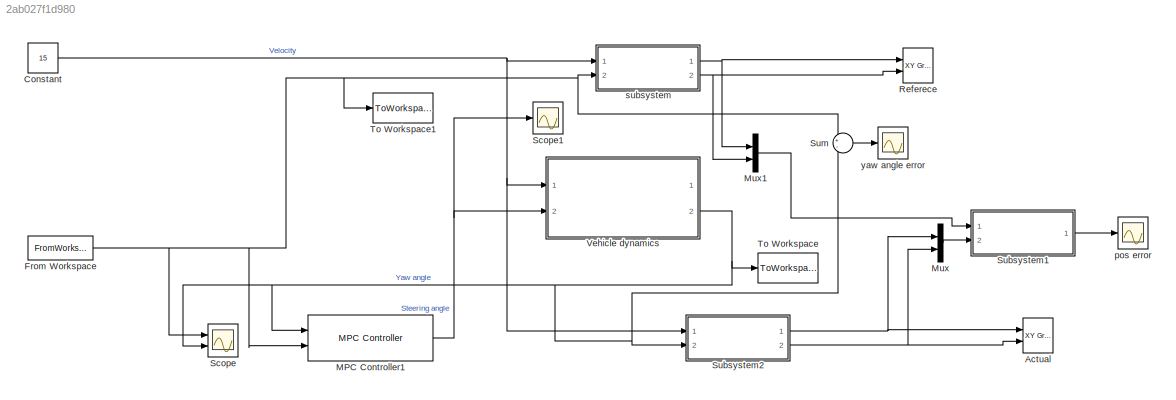
MODEL slx_2ab027f1d980
KIND model
CONFIG AbsTol = auto
CONFIG EnableMultiTasking = off
CONFIG FixedStep = 0.1
CONFIG MaxStep = auto
CONFIG MinStep = auto
CONFIG RelTol = 1e-3
CONFIG SampleTimeConstraint = Unconstrained
CONFIG Solver = FixedStepAuto
CONFIG SolverName = FixedStepAuto
CONFIG StartTime = 0.0
CONFIG StopTime = 7.6
BLOCK [Reference] Actual  REF=simulink/Sinks/XY Graph
  Ports = [2]
  SourceBlock = simulink/Sinks/XY Graph
  SourceProductBaseCode = SL
  SourceProductName = Simulink
  SourceType = XY scope.
BLOCK [Constant] Constant
  Value = 15
BLOCK [FromWorkspace] From Workspace
  SampleTime = 0
  VariableName = refYaw
  ZeroCross = on
BLOCK [Reference] MPC Controller1  REF=mpclib/MPC Controller  (lib defined in mdl_ae329e0e0455)
  Ports = [2, 1]
  SCDEnableBlockLinearizationSpecification = on
  SourceBlock = mpclib/MPC Controller
  SourceProductBaseCode = MP
  SourceProductName = Model Predictive Control Toolbox
  SourceType = MPC
BLOCK [Mux] Mux
  DisplayOption = bar
  Inputs = 2
  Ports = [2, 1]
BLOCK [Mux] Mux1
  DisplayOption = bar
  Inputs = 2
  Ports = [2, 1]
BLOCK [Reference] Referece  REF=simulink/Sinks/XY Graph
  Ports = [2]
  SourceBlock = simulink/Sinks/XY Graph
  SourceProductBaseCode = SL
  SourceProductName = Simulink
  SourceType = XY scope.
BLOCK [Scope] Scope
  Floating = off
  NumInputPorts = 2
  Ports = [2]
  ScopeSpecificationString = Simulink.scopes.TimeScopeBlockCfg('CurrentConfiguration', extmgr.ConfigurationSet(extmgr.Configuration('Core','General UI',true),extmgr.Configuration('Core','Source UI',true),extmgr.Configuration('Sources','WiredSimulink',true),extmgr.Configuration('Visuals','Time Domain',true,'SerializedDisplays',{struct('MinYLimReal','-3.26629','MaxYLimReal','3.71739','YLabelReal','','MinYLimMag','0.00000','MaxY...<+1400ch>
BLOCK [Scope] Scope1
  Floating = off
  NumInputPorts = 1
  Ports = [1]
  ScopeSpecificationString = Simulink.scopes.TimeScopeBlockCfg('CurrentConfiguration', extmgr.ConfigurationSet(extmgr.Configuration('Core','General UI',true),extmgr.Configuration('Core','Source UI',true),extmgr.Configuration('Sources','WiredSimulink',true,'DataLoggingVariableName','ScopeData1'),extmgr.Configuration('Visuals','Time Domain',true,'SerializedDisplays',{struct('MinYLimReal','-1.39951','MaxYLimReal','1.44789','YLab...<+1373ch>
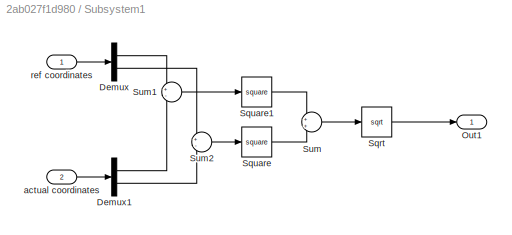
BLOCK [SubSystem] Subsystem1
  Ports = [2, 1]
  RequestExecContextInheritance = off
BLOCK [Demux] Subsystem1/Demux
  DisplayOption = bar
  Outputs = 2
  Ports = [1, 2]
BLOCK [Demux] Subsystem1/Demux1
  DisplayOption = bar
  Outputs = 2
  Ports = [1, 2]
BLOCK [Outport] Subsystem1/Out1
  IconDisplay = Port number
BLOCK [Sqrt] Subsystem1/Sqrt
BLOCK [Math] Subsystem1/Square
  Operator = square
  Ports = [1, 1]
BLOCK [Math] Subsystem1/Square1
  Operator = square
  Ports = [1, 1]
BLOCK [Sum] Subsystem1/Sum
  IconShape = round
  InputSameDT = off
  OutDataTypeStr = Inherit: Inherit via internal rule
  Ports = [2, 1]
  SaturateOnIntegerOverflow = off
BLOCK [Sum] Subsystem1/Sum1
  IconShape = round
  InputSameDT = off
  Inputs = +-
  OutDataTypeStr = Inherit: Inherit via internal rule
  Ports = [2, 1]
  SaturateOnIntegerOverflow = off
BLOCK [Sum] Subsystem1/Sum2
  IconShape = round
  InputSameDT = off
  Inputs = +-
  OutDataTypeStr = Inherit: Inherit via internal rule
  Ports = [2, 1]
  SaturateOnIntegerOverflow = off
BLOCK [Inport] Subsystem1/actual coordinates
  IconDisplay = Port number
  Port = 2
BLOCK [Inport] Subsystem1/ref coordinates
  IconDisplay = Port number
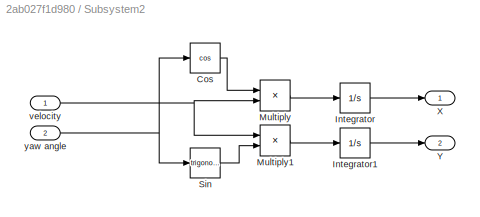
BLOCK [SubSystem] Subsystem2
  Ports = [2, 2]
  RequestExecContextInheritance = off
BLOCK [Trigonometry] Subsystem2/Cos
  Operator = cos
  Ports = [1, 1]
BLOCK [Integrator] Subsystem2/Integrator
  Ports = [1, 1]
BLOCK [Integrator] Subsystem2/Integrator1
  Ports = [1, 1]
BLOCK [Product] Subsystem2/Multiply
  InputSameDT = off
  OutDataTypeStr = Inherit: Inherit via internal rule
  Ports = [2, 1]
  RndMeth = Floor
  SaturateOnIntegerOverflow = off
BLOCK [Product] Subsystem2/Multiply1
  InputSameDT = off
  OutDataTypeStr = Inherit: Inherit via internal rule
  Ports = [2, 1]
  RndMeth = Floor
  SaturateOnIntegerOverflow = off
BLOCK [Trigonometry] Subsystem2/Sin
  Ports = [1, 1]
BLOCK [Outport] Subsystem2/X
  IconDisplay = Port number
BLOCK [Outport] Subsystem2/Y
  IconDisplay = Port number
  Port = 2
BLOCK [Inport] Subsystem2/velocity
  IconDisplay = Port number
BLOCK [Inport] Subsystem2/yaw angle
  IconDisplay = Port number
  Port = 2
BLOCK [Sum] Sum
  IconShape = round
  InputSameDT = off
  Inputs = +-
  OutDataTypeStr = Inherit: Inherit via internal rule
  Ports = [2, 1]
  SaturateOnIntegerOverflow = off
BLOCK [ToWorkspace] To Workspace
  FixptAsFi = on
  MaxDataPoints = inf
  Ports = [1]
  SampleTime = -1
  Save2DSignal = 3-D array (concatenate along third dimension)
  SaveFormat = Timeseries
  VariableName = actyaw
BLOCK [ToWorkspace] To Workspace1
  FixptAsFi = on
  MaxDataPoints = inf
  Ports = [1]
  SampleTime = -1
  Save2DSignal = 3-D array (concatenate along third dimension)
  SaveFormat = Timeseries
  VariableName = refyaw
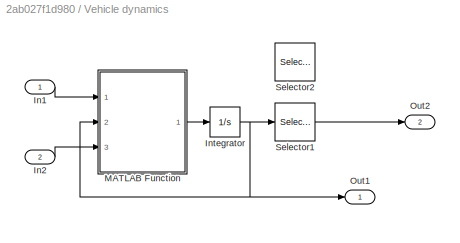
BLOCK [SubSystem] Vehicle dynamics
  Ports = [2, 2]
  RequestExecContextInheritance = off
BLOCK [Inport] Vehicle dynamics/In1
  IconDisplay = Port number
BLOCK [Inport] Vehicle dynamics/In2
  IconDisplay = Port number
  Port = 2
BLOCK [Integrator] Vehicle dynamics/Integrator
  Ports = [1, 1]
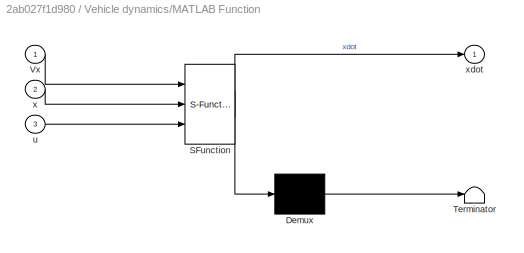
BLOCK [SubSystem] Vehicle dynamics/MATLAB Function
  ErrorFcn = Stateflow.Translate.translate
  PermitHierarchicalResolution = ExplicitOnly
  Ports = [3, 1]
  RequestExecContextInheritance = off
  SFBlockType = MATLAB Function
  TreatAsAtomicUnit = on
BLOCK [Demux] Vehicle dynamics/MATLAB Function/ Demux 
  Outputs = 1
  Ports = [1, 1]
BLOCK [S-Function] Vehicle dynamics/MATLAB Function/ SFunction 
  EnableBusSupport = on
  FunctionName = sf_sfun
  PortCounts = [3 2]
  Ports = [3, 2]
  SFcnIsStateOwnerBlock = off
  SFunctionDeploymentMode = off
  Tag = Stateflow S-Function racecarMPCsim 1
BLOCK [Terminator] Vehicle dynamics/MATLAB Function/ Terminator 
BLOCK [Inport] Vehicle dynamics/MATLAB Function/Vx
  IconDisplay = Port number
BLOCK [Inport] Vehicle dynamics/MATLAB Function/u
  IconDisplay = Port number
  Port = 3
BLOCK [Inport] Vehicle dynamics/MATLAB Function/x
  IconDisplay = Port number
  Port = 2
BLOCK [Outport] Vehicle dynamics/MATLAB Function/xdot
  IconDisplay = Port number
BLOCK [Outport] Vehicle dynamics/Out1
  IconDisplay = Port number
BLOCK [Outport] Vehicle dynamics/Out2
  IconDisplay = Port number
  Port = 2
BLOCK [Selector] Vehicle dynamics/Selector1
  IndexOptions = Index vector (dialog)
  Indices = 3
  InputPortWidth = 4
  OutputSizes = 1
  Ports = [1, 1]
BLOCK [Selector] Vehicle dynamics/Selector2
  IndexOptions = Index vector (dialog)
  Indices = 3
  InputPortWidth = 4
  OutputSizes = 1
  Ports = [1, 1]
BLOCK [Scope] pos error
  Floating = off
  NumInputPorts = 1
  Ports = [1]
  ScopeSpecificationString = Simulink.scopes.TimeScopeBlockCfg('CurrentConfiguration', extmgr.ConfigurationSet(extmgr.Configuration('Core','General UI',true),extmgr.Configuration('Core','Source UI',true),extmgr.Configuration('Sources','WiredSimulink',true,'DataLoggingVariableName','ScopeData3'),extmgr.Configuration('Visuals','Time Domain',true,'SerializedDisplays',{struct('MinYLimReal','-0.62901','MaxYLimReal','5.66112','YLab...<+1395ch>
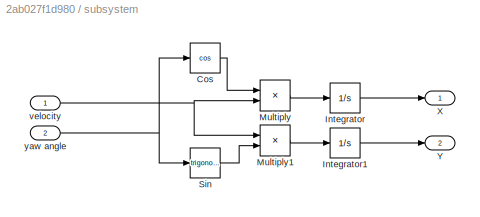
BLOCK [SubSystem] subsystem 
  Ports = [2, 2]
  RequestExecContextInheritance = off
BLOCK [Trigonometry] subsystem /Cos
  Operator = cos
  Ports = [1, 1]
BLOCK [Integrator] subsystem /Integrator
  Ports = [1, 1]
BLOCK [Integrator] subsystem /Integrator1
  Ports = [1, 1]
BLOCK [Product] subsystem /Multiply
  InputSameDT = off
  OutDataTypeStr = Inherit: Inherit via internal rule
  Ports = [2, 1]
  RndMeth = Floor
  SaturateOnIntegerOverflow = off
BLOCK [Product] subsystem /Multiply1
  InputSameDT = off
  OutDataTypeStr = Inherit: Inherit via internal rule
  Ports = [2, 1]
  RndMeth = Floor
  SaturateOnIntegerOverflow = off
BLOCK [Trigonometry] subsystem /Sin
  Ports = [1, 1]
BLOCK [Outport] subsystem /X
  IconDisplay = Port number
BLOCK [Outport] subsystem /Y
  IconDisplay = Port number
  Port = 2
BLOCK [Inport] subsystem /velocity
  IconDisplay = Port number
BLOCK [Inport] subsystem /yaw angle
  IconDisplay = Port number
  Port = 2
BLOCK [Scope] yaw angle error
  Floating = off
  NumInputPorts = 1
  Ports = [1]
  ScopeSpecificationString = Simulink.scopes.TimeScopeBlockCfg('CurrentConfiguration', extmgr.ConfigurationSet(extmgr.Configuration('Core','General UI',true),extmgr.Configuration('Core','Source UI',true),extmgr.Configuration('Sources','WiredSimulink',true,'DataLoggingVariableName','ScopeData2'),extmgr.Configuration('Visuals','Time Domain',true,'SerializedDisplays',{struct('MinYLimReal','-2.92299','MaxYLimReal','0.63539','YLab...<+1415ch>
NET Constant:1 -> Subsystem2:1, Vehicle dynamics:1, subsystem :1
NET From Workspace:1 -> MPC Controller1:2, Scope:1, Sum:1, To Workspace1:1, subsystem :2
NET MPC Controller1:1 -> Scope1:1, Vehicle dynamics:2
LINE Mux1:1 -> Subsystem1:1
LINE Mux:1 -> Subsystem1:2
LINE Subsystem1/Demux1:1 -> Subsystem1/Sum1:2
LINE Subsystem1/Demux1:2 -> Subsystem1/Sum2:2
LINE Subsystem1/Demux:1 -> Subsystem1/Sum1:1
LINE Subsystem1/Demux:2 -> Subsystem1/Sum2:1
LINE Subsystem1/Sqrt:1 -> Subsystem1/Out1:1
LINE Subsystem1/Square1:1 -> Subsystem1/Sum:1
LINE Subsystem1/Square:1 -> Subsystem1/Sum:2
LINE Subsystem1/Sum1:1 -> Subsystem1/Square1:1
LINE Subsystem1/Sum2:1 -> Subsystem1/Square:1
LINE Subsystem1/Sum:1 -> Subsystem1/Sqrt:1
LINE Subsystem1/actual coordinates:1 -> Subsystem1/Demux1:1
LINE Subsystem1/ref coordinates:1 -> Subsystem1/Demux:1
LINE Subsystem1:1 -> pos error:1
LINE Subsystem2/Cos:1 -> Subsystem2/Multiply:1
LINE Subsystem2/Integrator1:1 -> Subsystem2/Y:1
LINE Subsystem2/Integrator:1 -> Subsystem2/X:1
LINE Subsystem2/Multiply1:1 -> Subsystem2/Integrator1:1
LINE Subsystem2/Multiply:1 -> Subsystem2/Integrator:1
LINE Subsystem2/Sin:1 -> Subsystem2/Multiply1:2
NET Subsystem2/velocity:1 -> Subsystem2/Multiply1:1, Subsystem2/Multiply:2
NET Subsystem2/yaw angle:1 -> Subsystem2/Cos:1, Subsystem2/Sin:1
NET Subsystem2:1 -> Actual:1, Mux:1
NET Subsystem2:2 -> Actual:2, Mux:2
LINE Sum:1 -> yaw angle error:1
LINE Vehicle dynamics/In1:1 -> Vehicle dynamics/MATLAB Function:1
LINE Vehicle dynamics/In2:1 -> Vehicle dynamics/MATLAB Function:3
NET Vehicle dynamics/Integrator:1 -> Vehicle dynamics/MATLAB Function:2, Vehicle dynamics/Out1:1, Vehicle dynamics/Selector1:1
LINE Vehicle dynamics/MATLAB Function:1 -> Vehicle dynamics/Integrator:1
LINE Vehicle dynamics/Selector1:1 -> Vehicle dynamics/Out2:1
NET Vehicle dynamics:2 -> MPC Controller1:1, Scope:2, Subsystem2:2, Sum:2, To Workspace:1
LINE subsystem /Cos:1 -> subsystem /Multiply:1
LINE subsystem /Integrator1:1 -> subsystem /Y:1
LINE subsystem /Integrator:1 -> subsystem /X:1
LINE subsystem /Multiply1:1 -> subsystem /Integrator1:1
LINE subsystem /Multiply:1 -> subsystem /Integrator:1
LINE subsystem /Sin:1 -> subsystem /Multiply1:2
NET subsystem /velocity:1 -> subsystem /Multiply1:1, subsystem /Multiply:2
NET subsystem /yaw angle:1 -> subsystem /Cos:1, subsystem /Sin:1
NET subsystem :1 -> Mux1:1, Referece:1
NET subsystem :2 -> Mux1:2, Referece:2
note: NET lines group one-source signal fan-out (src -> all destinations, sorted); 1:1 wires keep LINE
CHART Vehicle dynamics/MATLAB Function states=1 transitions=1
  STATE_LABEL 'eML_blk_kernel()'
  STATE_LABEL 'SCRIPT:\nfunction xdot = fcn(Vx,x,u)\n\n% Model parameters\n% m = 293;\n% lw = 1.4;\n% Ltotal = 2.3;\n% Iz = m*(lw^2 + Ltotal^2)/12;\n% lf = 0.85;\n% lr = 0.75;\n% Cf = 12000;\n% Cr = 20000;\n\nm = 1575;\nIz = 2875;\nlf = 1.2;\nlr = 1.6;\nCf = 19000;\nCr = 33000;\n\n% Continuous-time model\nA = [-(2*Cf+2*Cr)/m/Vx, 0, -Vx-(2*Cf*lf-2*Cr*lr)/m/Vx, 0;\n     0, 0, 1, 0;\n     -(2*Cf*lf-2*Cr*lr)/Iz/Vx, 0, -(2*Cf*lf^2+2*Cr*lr^...<+137ch>'
